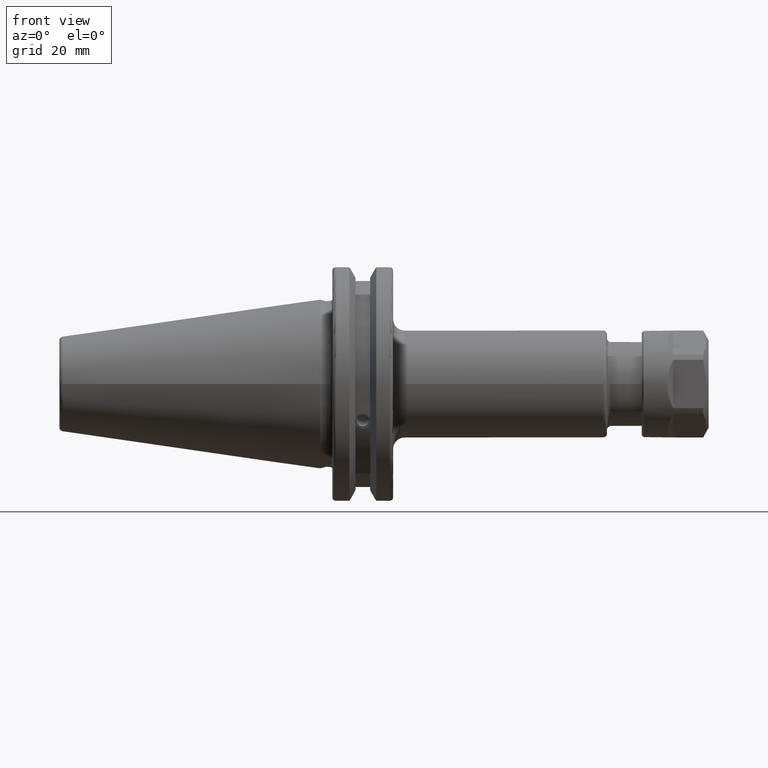
[diagram: clean part render]
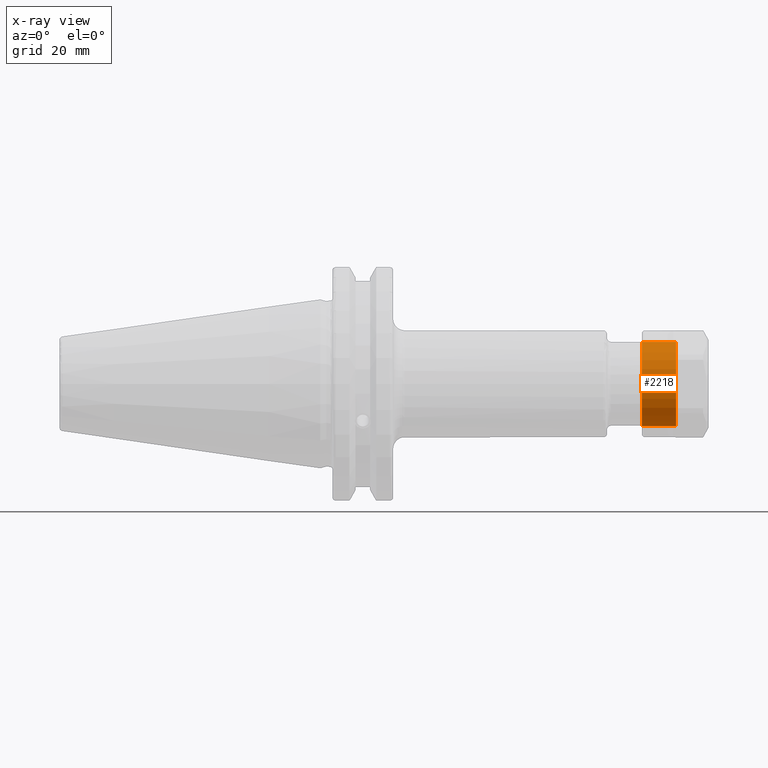
[diagram: x-ray — body ghosted, one internal face saturated and labeled with its STEP entity id]
A machine part, front view, then the same camera in x-ray: the body is ghosted and one INTERNAL B-rep face — a face not visible from any outside direction — is saturated and labeled: STEP entity #2218.
In plain terms, the highlighted cylindrical surface (bore or boss wall) has radius 11 mm, axis along (-1, 0, 0).
Its self-contained STEP definition (entity closure, byte-faithful):
#345=FACE_OUTER_BOUND('',#492,.T.);
#492=EDGE_LOOP('',(#2052,#2053,#2054,#2055));
#626=LINE('',#4207,#760);
#760=VECTOR('',#3218,11.);
#871=CIRCLE('',#2553,11.);
#872=CIRCLE('',#2554,11.);
#1084=VERTEX_POINT('',#4204);
#1085=VERTEX_POINT('',#4206);
#1407=EDGE_CURVE('',#1084,#1084,#871,.T.);
#1408=EDGE_CURVE('',#1084,#1085,#626,.T.);
#1409=EDGE_CURVE('',#1085,#1085,#872,.T.);
#2052=ORIENTED_EDGE('',*,*,#1407,.F.);
#2053=ORIENTED_EDGE('',*,*,#1408,.T.);
#2054=ORIENTED_EDGE('',*,*,#1409,.F.);
#2055=ORIENTED_EDGE('',*,*,#1408,.F.);
#2093=CYLINDRICAL_SURFACE('',#2552,11.);
#2218=ADVANCED_FACE('',(#345),#2093,.T.);
#2552=AXIS2_PLACEMENT_3D('',#4203,#3214,#3215);
#2553=AXIS2_PLACEMENT_3D('',#4205,#3216,#3217);
#2554=AXIS2_PLACEMENT_3D('',#4208,#3219,#3220);
#3214=DIRECTION('center_axis',(-1.,0.,0.));
#3215=DIRECTION('ref_axis',(0.,-1.,0.));
#3216=DIRECTION('center_axis',(-1.,0.,0.));
#3217=DIRECTION('ref_axis',(0.,-1.,0.));
#3218=DIRECTION('',(1.,0.,0.));
#3219=DIRECTION('center_axis',(1.,0.,0.));
#3220=DIRECTION('ref_axis',(0.,1.,0.));
#4203=CARTESIAN_POINT('Origin',(-8.75,0.,0.));
#4204=CARTESIAN_POINT('',(-8.75,11.,0.));
#4205=CARTESIAN_POINT('Origin',(-8.75,0.,0.));
#4206=CARTESIAN_POINT('',(0.25,11.,0.));
#4207=CARTESIAN_POINT('',(-8.75,11.,-1.34711147906209E-15));
#4208=CARTESIAN_POINT('Origin',(0.25,0.,0.));